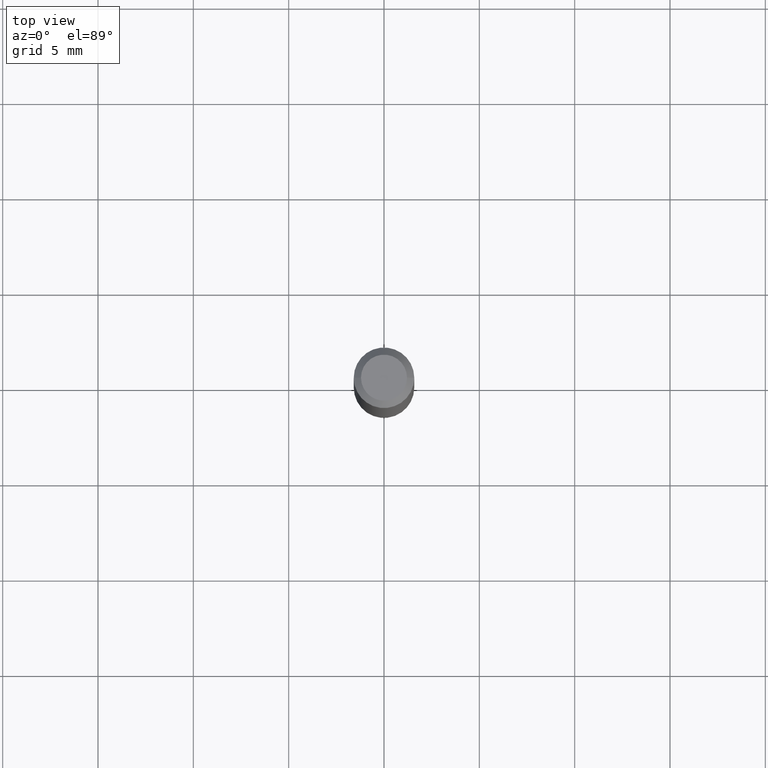
[diagram: clean part render]
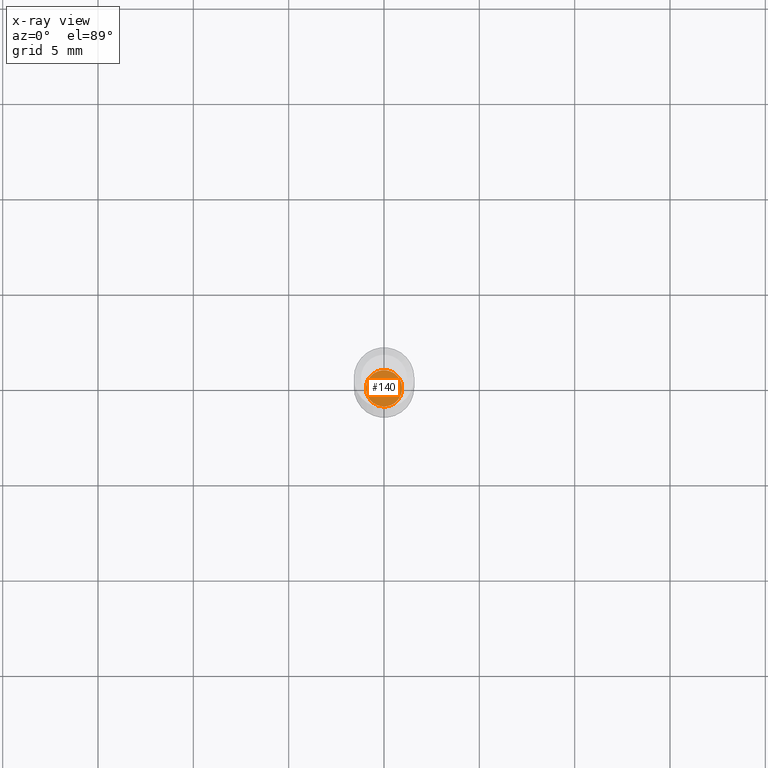
[diagram: x-ray — body ghosted, one internal face saturated and labeled with its STEP entity id]
A machine part, top view, then the same camera in x-ray: the body is ghosted and one INTERNAL B-rep face — a face not visible from any outside direction — is saturated and labeled: STEP entity #140.
In plain terms, the highlighted planar face has unit normal (0, -0, -1).
Its self-contained STEP definition (entity closure, byte-faithful):
#34 = VERTEX_POINT ( 'NONE', #437 ) ;
#55 = EDGE_LOOP ( 'NONE', ( #60, #97 ) ) ;
#60 = ORIENTED_EDGE ( 'NONE', *, *, #152, .T. ) ;
#88 = DIRECTION ( 'NONE',  ( 1.000000000000000000, -6.982962677686268288E-15, 0.000000000000000000 ) ) ;
#91 = DIRECTION ( 'NONE',  ( -1.000000000000000000, 6.982962677686265922E-15, -4.876176775795935793E-29 ) ) ;
#94 = VERTEX_POINT ( 'NONE', #112 ) ;
#97 = ORIENTED_EDGE ( 'NONE', *, *, #429, .T. ) ;
#112 = CARTESIAN_POINT ( 'NONE',  ( -0.03749999999999999861, -4.577976831734827473E-15, -1.275000000000000133 ) ) ;
#140 = ADVANCED_FACE ( 'NONE', ( #415 ), #454, .F. ) ;
#152 = EDGE_CURVE ( 'NONE', #34, #94, #259, .T. ) ;
#176 = AXIS2_PLACEMENT_3D ( 'NONE', #254, #252, #181 ) ;
#181 = DIRECTION ( 'NONE',  ( 1.000000000000000000, -6.982962677686268288E-15, 0.000000000000000000 ) ) ;
#226 = DIRECTION ( 'NONE',  ( 2.438088387897960049E-29, -3.491481338843145188E-15, -1.000000000000000000 ) ) ;
#230 = CARTESIAN_POINT ( 'NONE',  ( 2.618611004132661617E-16, 0.03749999999999554384, -1.275000000000000133 ) ) ;
#252 = DIRECTION ( 'NONE',  ( -2.445468806185136597E-29, 3.491481338843145583E-15, 1.000000000000000000 ) ) ;
#254 = CARTESIAN_POINT ( 'NONE',  ( 3.117972727886049049E-29, -4.451638707025011594E-15, -1.275000000000000133 ) ) ;
#259 = CIRCLE ( 'NONE', #392, 0.03749999999999999861 ) ;
#279 = DIRECTION ( 'NONE',  ( -2.445468806185136597E-29, 3.491481338843145583E-15, 1.000000000000000000 ) ) ;
#281 = CARTESIAN_POINT ( 'NONE',  ( 3.117972727886049049E-29, -4.451638707025011594E-15, -1.275000000000000133 ) ) ;
#325 = AXIS2_PLACEMENT_3D ( 'NONE', #230, #226, #91 ) ;
#357 = CIRCLE ( 'NONE', #176, 0.03749999999999999861 ) ;
#392 = AXIS2_PLACEMENT_3D ( 'NONE', #281, #279, #88 ) ;
#415 = FACE_OUTER_BOUND ( 'NONE', #55, .T. ) ;
#429 = EDGE_CURVE ( 'NONE', #94, #34, #357, .T. ) ;
#437 = CARTESIAN_POINT ( 'NONE',  ( 0.03749999999999999861, -4.713499807438246596E-15, -1.275000000000000133 ) ) ;
#454 = PLANE ( 'NONE',  #325 ) ;